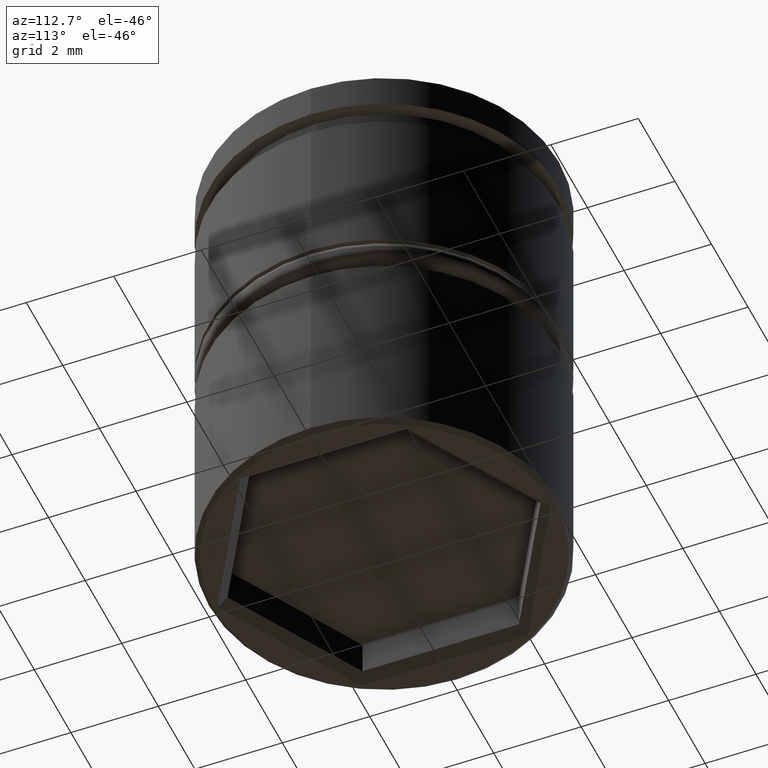
[diagram: clean part render]
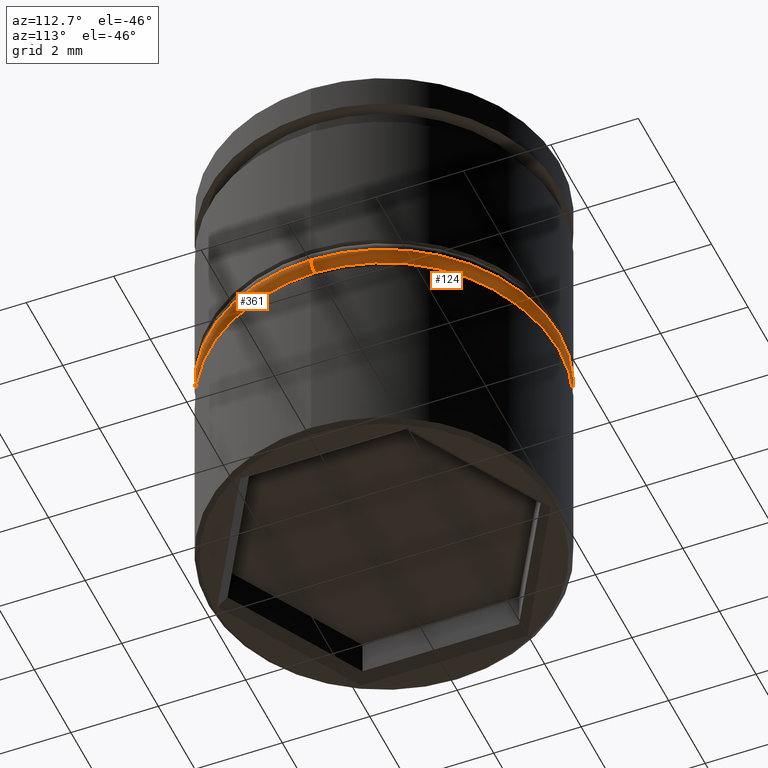
[diagram: same view with one multi-face feature highlighted, each face labeled with its STEP entity id]
A machine part, auxiliary view. The highlighted faces form ONE feature: a constant-radius fillet chain: 2 tangent blend faces with common blend radius 0.2 mm. The faces share edges in the B-rep.
Their STEP definitions:
[1] entity #361 (Torus):
#10 = CARTESIAN_POINT ( 'NONE',  ( 3.799999999999999822, 0.000000000000000000, -5.499999999999999112 ) ) ;
#52 = CARTESIAN_POINT ( 'NONE',  ( 0.000000000000000000, 0.000000000000000000, -5.499999999999999112 ) ) ;
#54 = CARTESIAN_POINT ( 'NONE',  ( 0.000000000000000000, 0.000000000000000000, -5.299999999999998934 ) ) ;
#168 = CIRCLE ( 'NONE', #262, 0.1999999999999996503 ) ;
#236 = VERTEX_POINT ( 'NONE', #702 ) ;
#252 = AXIS2_PLACEMENT_3D ( 'NONE', #54, #415, #774 ) ;
#262 = AXIS2_PLACEMENT_3D ( 'NONE', #921, #1028, #1012 ) ;
#315 = AXIS2_PLACEMENT_3D ( 'NONE', #1143, #688, #643 ) ;
#356 = EDGE_CURVE ( 'NONE', #1128, #236, #811, .T. ) ;
#361 = ADVANCED_FACE ( 'NONE', ( #624 ), #1039, .T. ) ;
#385 = CIRCLE ( 'NONE', #539, 0.2000000000000000944 ) ;
#409 = DIRECTION ( 'NONE',  ( 1.224646799147353207E-16, 1.000000000000000000, -0.000000000000000000 ) ) ;
#411 = ORIENTED_EDGE ( 'NONE', *, *, #758, .F. ) ;
#415 = DIRECTION ( 'NONE',  ( 0.000000000000000000, 0.000000000000000000, 1.000000000000000000 ) ) ;
#539 = AXIS2_PLACEMENT_3D ( 'NONE', #973, #409, #1137 ) ;
#624 = FACE_OUTER_BOUND ( 'NONE', #1136, .T. ) ;
#643 = DIRECTION ( 'NONE',  ( 1.000000000000000000, 0.000000000000000000, 0.000000000000000000 ) ) ;
#673 = ORIENTED_EDGE ( 'NONE', *, *, #356, .F. ) ;
#682 = VERTEX_POINT ( 'NONE', #779 ) ;
#688 = DIRECTION ( 'NONE',  ( 0.000000000000000000, 0.000000000000000000, 1.000000000000000000 ) ) ;
#702 = CARTESIAN_POINT ( 'NONE',  ( -3.799999999999999822, 4.776122516674677286E-16, -5.499999999999999112 ) ) ;
#758 = EDGE_CURVE ( 'NONE', #236, #682, #385, .T. ) ;
#764 = DIRECTION ( 'NONE',  ( 1.000000000000000000, 0.000000000000000000, 0.000000000000000000 ) ) ;
#766 = CIRCLE ( 'NONE', #252, 4.000000000000000000 ) ;
#773 = DIRECTION ( 'NONE',  ( -0.000000000000000000, -0.000000000000000000, -1.000000000000000000 ) ) ;
#774 = DIRECTION ( 'NONE',  ( 1.000000000000000000, 0.000000000000000000, 0.000000000000000000 ) ) ;
#779 = CARTESIAN_POINT ( 'NONE',  ( -4.000000000000000000, 4.898587196589412829E-16, -5.299999999999998934 ) ) ;
#789 = AXIS2_PLACEMENT_3D ( 'NONE', #52, #773, #764 ) ;
#811 = CIRCLE ( 'NONE', #789, 3.799999999999999822 ) ;
#813 = EDGE_CURVE ( 'NONE', #682, #832, #766, .T. ) ;
#832 = VERTEX_POINT ( 'NONE', #910 ) ;
#910 = CARTESIAN_POINT ( 'NONE',  ( 4.000000000000000000, 0.000000000000000000, -5.299999999999998934 ) ) ;
#921 = CARTESIAN_POINT ( 'NONE',  ( 3.799999999999999822, 0.000000000000000000, -5.299999999999998934 ) ) ;
#973 = CARTESIAN_POINT ( 'NONE',  ( -3.799999999999999822, 4.653657836759942730E-16, -5.299999999999998934 ) ) ;
#1012 = DIRECTION ( 'NONE',  ( 0.000000000000000000, 0.000000000000000000, -1.000000000000000000 ) ) ;
#1016 = EDGE_CURVE ( 'NONE', #1128, #832, #168, .T. ) ;
#1028 = DIRECTION ( 'NONE',  ( 0.000000000000000000, -1.000000000000000000, 0.000000000000000000 ) ) ;
#1039 = TOROIDAL_SURFACE ( 'NONE', #315, 3.799999999999999822, 0.2000000000000000111 ) ;
#1042 = ORIENTED_EDGE ( 'NONE', *, *, #1016, .T. ) ;
#1094 = ORIENTED_EDGE ( 'NONE', *, *, #813, .F. ) ;
#1128 = VERTEX_POINT ( 'NONE', #10 ) ;
#1136 = EDGE_LOOP ( 'NONE', ( #411, #673, #1042, #1094 ) ) ;
#1137 = DIRECTION ( 'NONE',  ( -1.000000000000000000, 1.224646799147350742E-16, 0.000000000000000000 ) ) ;
#1143 = CARTESIAN_POINT ( 'NONE',  ( 0.000000000000000000, 0.000000000000000000, -5.299999999999998934 ) ) ;
[2] entity #124 (Torus):
#10 = CARTESIAN_POINT ( 'NONE',  ( 3.799999999999999822, 0.000000000000000000, -5.499999999999999112 ) ) ;
#11 = AXIS2_PLACEMENT_3D ( 'NONE', #174, #532, #993 ) ;
#104 = DIRECTION ( 'NONE',  ( 0.000000000000000000, 0.000000000000000000, 1.000000000000000000 ) ) ;
#124 = ADVANCED_FACE ( 'NONE', ( #1171 ), #596, .T. ) ;
#132 = CIRCLE ( 'NONE', #11, 3.799999999999999822 ) ;
#168 = CIRCLE ( 'NONE', #262, 0.1999999999999996503 ) ;
#174 = CARTESIAN_POINT ( 'NONE',  ( 0.000000000000000000, 0.000000000000000000, -5.499999999999999112 ) ) ;
#236 = VERTEX_POINT ( 'NONE', #702 ) ;
#262 = AXIS2_PLACEMENT_3D ( 'NONE', #921, #1028, #1012 ) ;
#264 = DIRECTION ( 'NONE',  ( 1.000000000000000000, 0.000000000000000000, 0.000000000000000000 ) ) ;
#303 = DIRECTION ( 'NONE',  ( 0.000000000000000000, 0.000000000000000000, 1.000000000000000000 ) ) ;
#325 = CIRCLE ( 'NONE', #956, 4.000000000000000000 ) ;
#339 = ORIENTED_EDGE ( 'NONE', *, *, #1016, .F. ) ;
#350 = AXIS2_PLACEMENT_3D ( 'NONE', #639, #104, #264 ) ;
#385 = CIRCLE ( 'NONE', #539, 0.2000000000000000944 ) ;
#386 = CARTESIAN_POINT ( 'NONE',  ( 0.000000000000000000, 0.000000000000000000, -5.299999999999998934 ) ) ;
#389 = ORIENTED_EDGE ( 'NONE', *, *, #1093, .F. ) ;
#409 = DIRECTION ( 'NONE',  ( 1.224646799147353207E-16, 1.000000000000000000, -0.000000000000000000 ) ) ;
#478 = EDGE_LOOP ( 'NONE', ( #1142, #882, #389, #339 ) ) ;
#514 = EDGE_CURVE ( 'NONE', #236, #1128, #132, .T. ) ;
#532 = DIRECTION ( 'NONE',  ( -0.000000000000000000, -0.000000000000000000, -1.000000000000000000 ) ) ;
#539 = AXIS2_PLACEMENT_3D ( 'NONE', #973, #409, #1137 ) ;
#596 = TOROIDAL_SURFACE ( 'NONE', #350, 3.799999999999999822, 0.2000000000000000111 ) ;
#639 = CARTESIAN_POINT ( 'NONE',  ( 0.000000000000000000, 0.000000000000000000, -5.299999999999998934 ) ) ;
#682 = VERTEX_POINT ( 'NONE', #779 ) ;
#702 = CARTESIAN_POINT ( 'NONE',  ( -3.799999999999999822, 4.776122516674677286E-16, -5.499999999999999112 ) ) ;
#750 = DIRECTION ( 'NONE',  ( 1.000000000000000000, 0.000000000000000000, 0.000000000000000000 ) ) ;
#758 = EDGE_CURVE ( 'NONE', #236, #682, #385, .T. ) ;
#779 = CARTESIAN_POINT ( 'NONE',  ( -4.000000000000000000, 4.898587196589412829E-16, -5.299999999999998934 ) ) ;
#832 = VERTEX_POINT ( 'NONE', #910 ) ;
#882 = ORIENTED_EDGE ( 'NONE', *, *, #758, .T. ) ;
#910 = CARTESIAN_POINT ( 'NONE',  ( 4.000000000000000000, 0.000000000000000000, -5.299999999999998934 ) ) ;
#921 = CARTESIAN_POINT ( 'NONE',  ( 3.799999999999999822, 0.000000000000000000, -5.299999999999998934 ) ) ;
#956 = AXIS2_PLACEMENT_3D ( 'NONE', #386, #303, #750 ) ;
#973 = CARTESIAN_POINT ( 'NONE',  ( -3.799999999999999822, 4.653657836759942730E-16, -5.299999999999998934 ) ) ;
#993 = DIRECTION ( 'NONE',  ( 1.000000000000000000, 0.000000000000000000, 0.000000000000000000 ) ) ;
#1012 = DIRECTION ( 'NONE',  ( 0.000000000000000000, 0.000000000000000000, -1.000000000000000000 ) ) ;
#1016 = EDGE_CURVE ( 'NONE', #1128, #832, #168, .T. ) ;
#1028 = DIRECTION ( 'NONE',  ( 0.000000000000000000, -1.000000000000000000, 0.000000000000000000 ) ) ;
#1093 = EDGE_CURVE ( 'NONE', #832, #682, #325, .T. ) ;
#1128 = VERTEX_POINT ( 'NONE', #10 ) ;
#1137 = DIRECTION ( 'NONE',  ( -1.000000000000000000, 1.224646799147350742E-16, 0.000000000000000000 ) ) ;
#1142 = ORIENTED_EDGE ( 'NONE', *, *, #514, .F. ) ;
#1171 = FACE_OUTER_BOUND ( 'NONE', #478, .T. ) ;